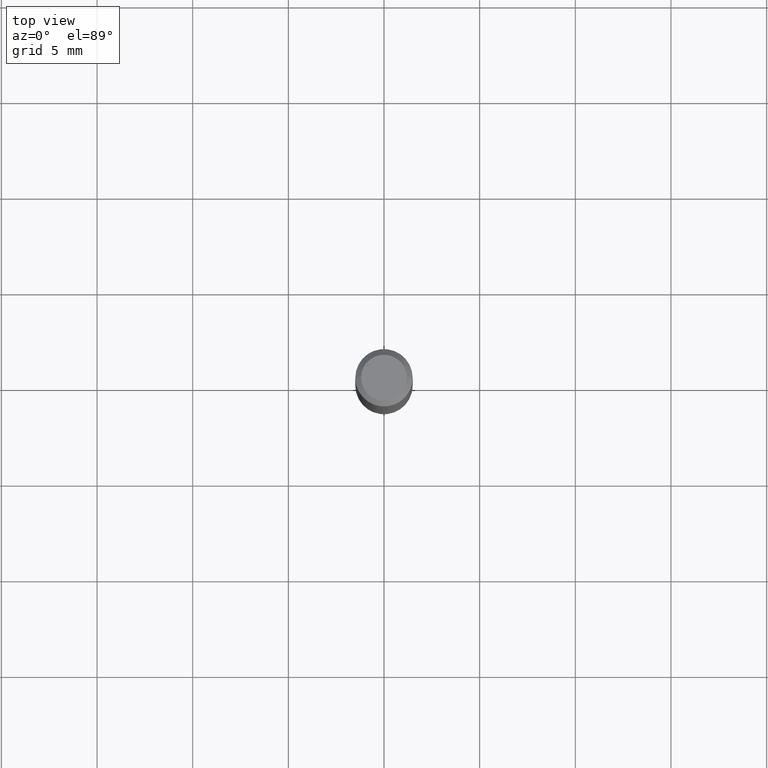
[diagram: clean part render]
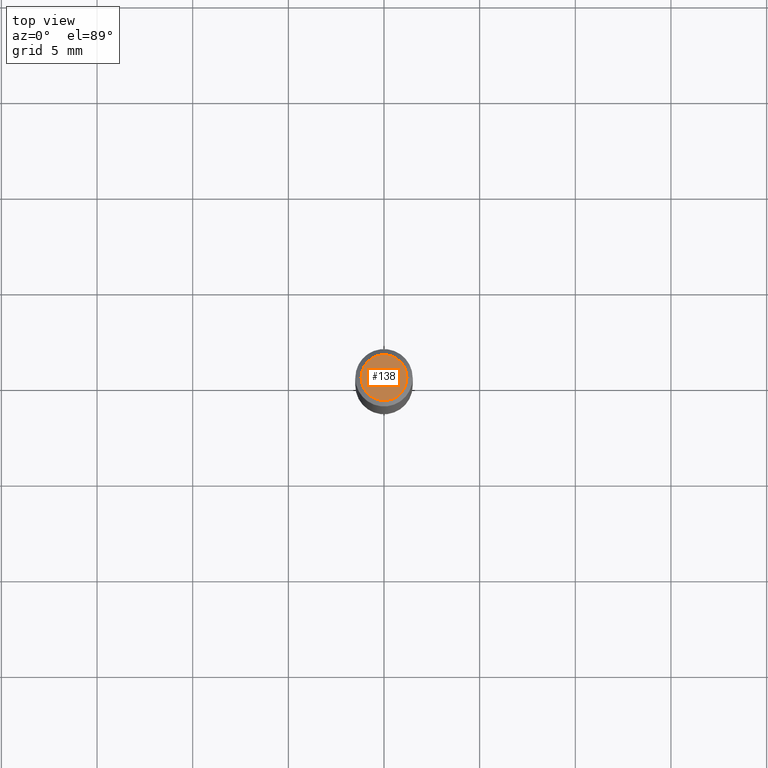
[diagram: same view with one face highlighted and labeled with its STEP entity id]
A machine part, top view. The second image highlights one B-rep face of the part: STEP entity #138.
In plain terms, the highlighted planar face has unit normal (0, -0, -1).
Its self-contained STEP definition (entity closure, byte-faithful):
#2 = EDGE_LOOP ( 'NONE', ( #424, #267 ) ) ;
#24 = DIRECTION ( 'NONE',  ( -2.445468806185136597E-29, 3.491481338843145583E-15, 1.000000000000000000 ) ) ;
#96 = DIRECTION ( 'NONE',  ( 1.000000000000000000, -6.982962677686266711E-15, 4.876185090822587894E-29 ) ) ;
#110 = CARTESIAN_POINT ( 'NONE',  ( 0.04724000000000000421, -3.852183633974369345E-16, -3.380025165621689721E-19 ) ) ;
#119 = AXIS2_PLACEMENT_3D ( 'NONE', #258, #437, #155 ) ;
#127 = VERTEX_POINT ( 'NONE', #296 ) ;
#138 = ADVANCED_FACE ( 'NONE', ( #435 ), #484, .F. ) ;
#141 = VERTEX_POINT ( 'NONE', #110 ) ;
#142 = CARTESIAN_POINT ( 'NONE',  ( 8.265746106709734507E-48, -1.180129479067563789E-33, -3.380025165646692144E-19 ) ) ;
#155 = DIRECTION ( 'NONE',  ( -1.000000000000000000, 6.982962677686265922E-15, -4.876176775795935793E-29 ) ) ;
#194 = AXIS2_PLACEMENT_3D ( 'NONE', #142, #24, #286 ) ;
#258 = CARTESIAN_POINT ( 'NONE',  ( 4.132873053354867254E-48, -5.900647395337818946E-34, -1.690012582823346072E-19 ) ) ;
#267 = ORIENTED_EDGE ( 'NONE', *, *, #368, .T. ) ;
#280 = CARTESIAN_POINT ( 'NONE',  ( 8.265746106709734507E-48, -1.180129479067563789E-33, -3.380025165646692144E-19 ) ) ;
#286 = DIRECTION ( 'NONE',  ( 1.000000000000000000, -6.982962677686266711E-15, 4.876185090822587894E-29 ) ) ;
#287 = AXIS2_PLACEMENT_3D ( 'NONE', #280, #423, #96 ) ;
#296 = CARTESIAN_POINT ( 'NONE',  ( -0.04724000000000000421, 3.504923541997677355E-16, -3.380025165670481712E-19 ) ) ;
#368 = EDGE_CURVE ( 'NONE', #141, #127, #476, .T. ) ;
#380 = EDGE_CURVE ( 'NONE', #127, #141, #398, .T. ) ;
#398 = CIRCLE ( 'NONE', #194, 0.04724000000000000421 ) ;
#423 = DIRECTION ( 'NONE',  ( -2.445468806185136597E-29, 3.491481338843145583E-15, 1.000000000000000000 ) ) ;
#424 = ORIENTED_EDGE ( 'NONE', *, *, #380, .T. ) ;
#435 = FACE_OUTER_BOUND ( 'NONE', #2, .T. ) ;
#437 = DIRECTION ( 'NONE',  ( 2.438088387897960049E-29, -3.491481338843145188E-15, -1.000000000000000000 ) ) ;
#476 = CIRCLE ( 'NONE', #287, 0.04724000000000000421 ) ;
#484 = PLANE ( 'NONE',  #119 ) ;